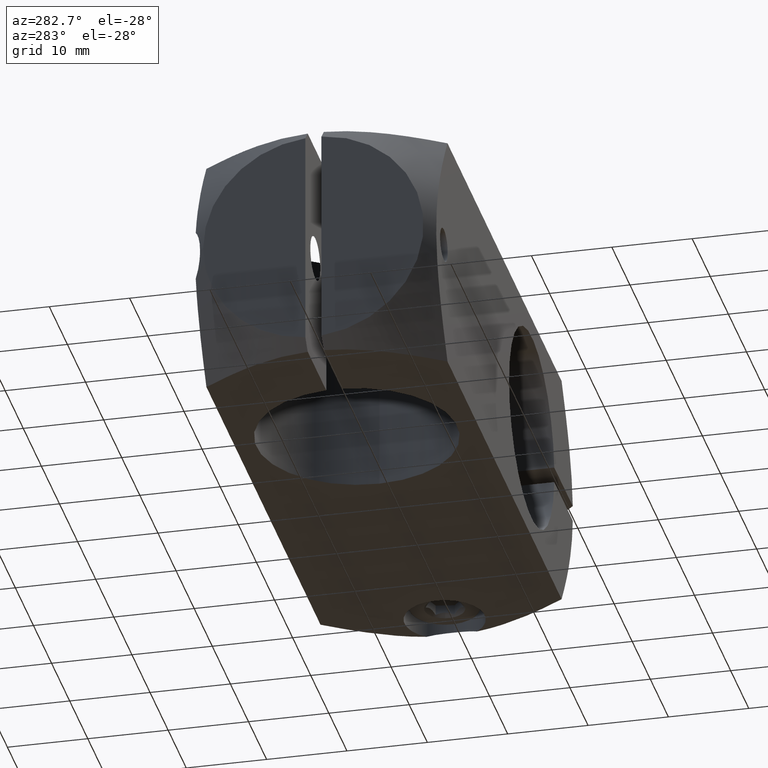
[diagram: clean part render]
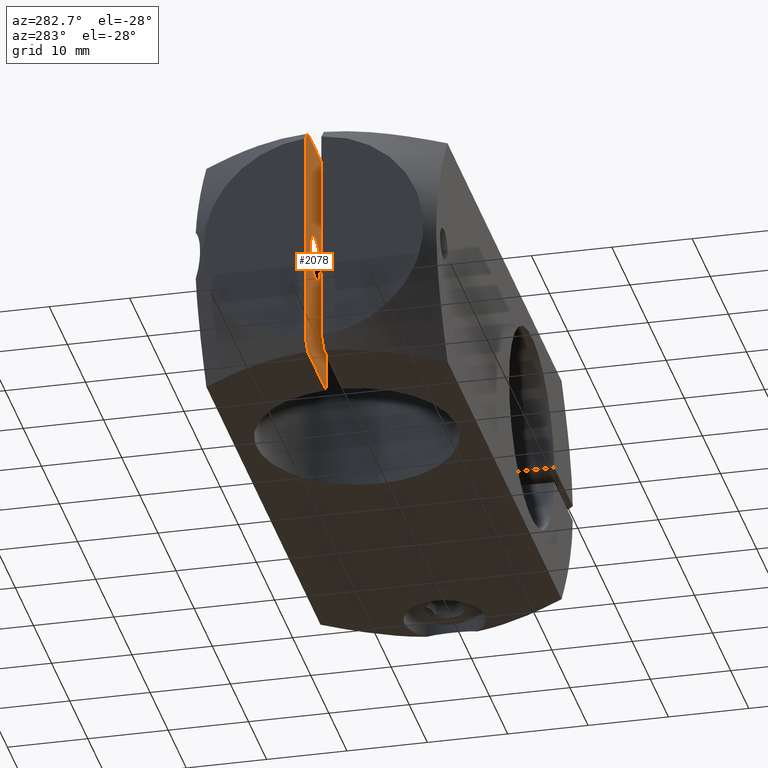
[diagram: same view with one face highlighted and labeled with its STEP entity id]
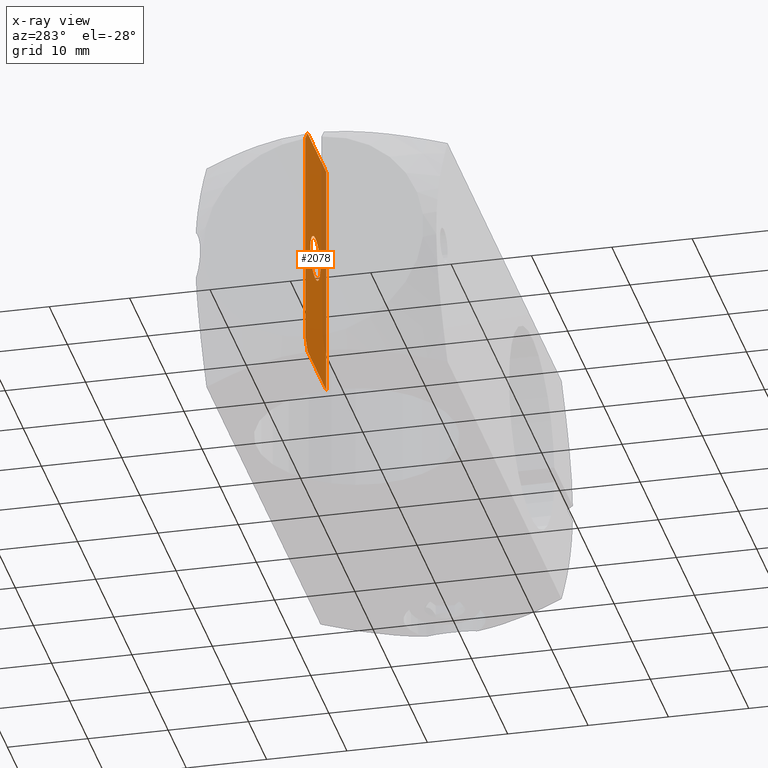
[diagram: x-ray of the same camera — body ghosted, the highlighted face saturated]
A machine part, auxiliary view. The second image highlights one B-rep face of the part: STEP entity #2078.
The next image is the same camera in x-ray: the body ghosted, the highlighted face saturated — about 19% of this face is hidden behind the body in this view.
In plain terms, the highlighted planar face has unit normal (-0, 1, 0).
Its self-contained STEP definition (entity closure, byte-faithful):
#16 = DIRECTION ( 'NONE',  ( 0.000000000000000000, 0.000000000000000000, 1.000000000000000000 ) ) ;
#37 = FACE_OUTER_BOUND ( 'NONE', #610, .T. ) ;
#43 = EDGE_CURVE ( 'NONE', #1654, #1300, #1221, .T. ) ;
#60 = EDGE_CURVE ( 'NONE', #736, #555, #1269, .T. ) ;
#88 = CARTESIAN_POINT ( 'NONE',  ( -20.60404504437318707, -7.489728769479425452, 91.84039175949929756 ) ) ;
#106 = VERTEX_POINT ( 'NONE', #1228 ) ;
#117 = LINE ( 'NONE', #291, #1576 ) ;
#126 = CARTESIAN_POINT ( 'NONE',  ( -15.10404504437317463, -7.489728769479425452, 80.91369555892572407 ) ) ;
#171 = DIRECTION ( 'NONE',  ( -0.000000000000000000, 1.000000000000000000, 0.000000000000000000 ) ) ;
#190 = CARTESIAN_POINT ( 'NONE',  ( -15.10404504437317463, -7.489728769479425452, 78.16369555892570986 ) ) ;
#194 = EDGE_CURVE ( 'NONE', #106, #678, #117, .T. ) ;
#213 = DIRECTION ( 'NONE',  ( -0.000000000000000000, 1.000000000000000000, 0.000000000000000000 ) ) ;
#262 = CARTESIAN_POINT ( 'NONE',  ( -19.28395444628326771, -7.489728769479425452, 63.16369555892571697 ) ) ;
#291 = CARTESIAN_POINT ( 'NONE',  ( -44.57811922938638105, -7.489728769479425452, 93.16369555892570986 ) ) ;
#364 = FACE_BOUND ( 'NONE', #766, .T. ) ;
#371 = CARTESIAN_POINT ( 'NONE',  ( -19.28395444628326771, -7.489728769479425452, 63.16369555892571697 ) ) ;
#514 = B_SPLINE_CURVE_WITH_KNOTS ( 'NONE', 3,
 ( #1224, #1055, #1732, #557 ),
 .UNSPECIFIED., .F., .F.,
 ( 4, 4 ),
 ( 9.888395924875875360E-07, 0.001870126274407364619 ),
 .UNSPECIFIED. ) ;
#555 = VERTEX_POINT ( 'NONE', #1052 ) ;
#557 = CARTESIAN_POINT ( 'NONE',  ( -20.60404504437318707, -7.489728769479425452, 91.84039175949929756 ) ) ;
#610 = EDGE_LOOP ( 'NONE', ( #2160, #2135, #1998, #918, #1437, #934 ) ) ;
#678 = VERTEX_POINT ( 'NONE', #1622 ) ;
#695 = CARTESIAN_POINT ( 'NONE',  ( -15.10404504437317463, -7.489728769479425452, 78.16369555892570986 ) ) ;
#709 = VERTEX_POINT ( 'NONE', #88 ) ;
#736 = VERTEX_POINT ( 'NONE', #262 ) ;
#766 = EDGE_LOOP ( 'NONE', ( #1186, #1497 ) ) ;
#806 = B_SPLINE_CURVE_WITH_KNOTS ( 'NONE', 3,
 ( #2124, #921, #2112, #371 ),
 .UNSPECIFIED., .F., .F.,
 ( 4, 4 ),
 ( 0.03956520033644155693, 0.04145065740465206372 ),
 .UNSPECIFIED. ) ;
#893 = CARTESIAN_POINT ( 'NONE',  ( -44.57811922938638105, -7.489728769479425452, 63.16269555892571930 ) ) ;
#905 = CARTESIAN_POINT ( 'NONE',  ( -9.063983667686292378, -7.489728769479425452, 63.16269555892571930 ) ) ;
#909 = DIRECTION ( 'NONE',  ( 1.000000000000000000, 0.000000000000000000, 0.000000000000000000 ) ) ;
#918 = ORIENTED_EDGE ( 'NONE', *, *, #1309, .T. ) ;
#921 = CARTESIAN_POINT ( 'NONE',  ( -20.16406659355164521, -7.489728769479425452, 64.04584647209138382 ) ) ;
#934 = ORIENTED_EDGE ( 'NONE', *, *, #1723, .T. ) ;
#979 = CARTESIAN_POINT ( 'NONE',  ( -20.60404504437318707, -7.489728769479425452, 64.48699935835212216 ) ) ;
#1052 = CARTESIAN_POINT ( 'NONE',  ( -9.063983667686292378, -7.489728769479425452, 63.16369555892571697 ) ) ;
#1055 = CARTESIAN_POINT ( 'NONE',  ( -19.72403208669276964, -7.489728769479425452, 92.72264112119725610 ) ) ;
#1060 = VECTOR ( 'NONE', #1288, 1000.000000000000000 ) ;
#1084 = PLANE ( 'NONE',  #1614 ) ;
#1161 = VERTEX_POINT ( 'NONE', #979 ) ;
#1186 = ORIENTED_EDGE ( 'NONE', *, *, #43, .T. ) ;
#1221 = CIRCLE ( 'NONE', #1361, 2.750000000000002665 ) ;
#1224 = CARTESIAN_POINT ( 'NONE',  ( -19.28395444628326771, -7.489728769479425452, 93.16369555892570986 ) ) ;
#1228 = CARTESIAN_POINT ( 'NONE',  ( -9.063983667686292378, -7.489728769479425452, 93.16369555892570986 ) ) ;
#1268 = CARTESIAN_POINT ( 'NONE',  ( -15.10404504437317463, -7.489728769479425452, 75.41369555892570986 ) ) ;
#1269 = LINE ( 'NONE', #1952, #2183 ) ;
#1288 = DIRECTION ( 'NONE',  ( 0.000000000000000000, 0.000000000000000000, -1.000000000000000000 ) ) ;
#1300 = VERTEX_POINT ( 'NONE', #1268 ) ;
#1309 = EDGE_CURVE ( 'NONE', #1161, #736, #806, .T. ) ;
#1360 = EDGE_CURVE ( 'NONE', #678, #709, #514, .T. ) ;
#1361 = AXIS2_PLACEMENT_3D ( 'NONE', #190, #213, #1917 ) ;
#1386 = VECTOR ( 'NONE', #1388, 1000.000000000000000 ) ;
#1388 = DIRECTION ( 'NONE',  ( -0.000000000000000000, -0.000000000000000000, 1.000000000000000000 ) ) ;
#1421 = LINE ( 'NONE', #905, #1386 ) ;
#1437 = ORIENTED_EDGE ( 'NONE', *, *, #60, .T. ) ;
#1445 = LINE ( 'NONE', #1462, #1060 ) ;
#1462 = CARTESIAN_POINT ( 'NONE',  ( -20.60404504437316575, -7.489728769479425452, 63.16269555892571930 ) ) ;
#1497 = ORIENTED_EDGE ( 'NONE', *, *, #2106, .T. ) ;
#1532 = CIRCLE ( 'NONE', #1813, 2.750000000000002665 ) ;
#1576 = VECTOR ( 'NONE', #1697, 1000.000000000000000 ) ;
#1614 = AXIS2_PLACEMENT_3D ( 'NONE', #893, #1737, #1931 ) ;
#1622 = CARTESIAN_POINT ( 'NONE',  ( -19.28395444628326771, -7.489728769479425452, 93.16369555892570986 ) ) ;
#1654 = VERTEX_POINT ( 'NONE', #126 ) ;
#1697 = DIRECTION ( 'NONE',  ( -1.000000000000000000, -0.000000000000000000, -0.000000000000000000 ) ) ;
#1723 = EDGE_CURVE ( 'NONE', #555, #106, #1421, .T. ) ;
#1732 = CARTESIAN_POINT ( 'NONE',  ( -20.16406686450732266, -7.489728769479425452, 92.28154437408112187 ) ) ;
#1737 = DIRECTION ( 'NONE',  ( -0.000000000000000000, 1.000000000000000000, 0.000000000000000000 ) ) ;
#1813 = AXIS2_PLACEMENT_3D ( 'NONE', #695, #171, #16 ) ;
#1835 = EDGE_CURVE ( 'NONE', #709, #1161, #1445, .T. ) ;
#1917 = DIRECTION ( 'NONE',  ( 0.000000000000000000, 0.000000000000000000, 1.000000000000000000 ) ) ;
#1931 = DIRECTION ( 'NONE',  ( 0.000000000000000000, -0.000000000000000000, 1.000000000000000000 ) ) ;
#1952 = CARTESIAN_POINT ( 'NONE',  ( -44.57811922938638105, -7.489728769479425452, 63.16369555892571697 ) ) ;
#1998 = ORIENTED_EDGE ( 'NONE', *, *, #1835, .T. ) ;
#2078 = ADVANCED_FACE ( 'NONE', ( #364, #37 ), #1084, .F. ) ;
#2106 = EDGE_CURVE ( 'NONE', #1300, #1654, #1532, .T. ) ;
#2112 = CARTESIAN_POINT ( 'NONE',  ( -19.72403183952945582, -7.489728769479425452, 63.60474974894226818 ) ) ;
#2124 = CARTESIAN_POINT ( 'NONE',  ( -20.60404504437318707, -7.489728769479425452, 64.48699935835212216 ) ) ;
#2135 = ORIENTED_EDGE ( 'NONE', *, *, #1360, .T. ) ;
#2160 = ORIENTED_EDGE ( 'NONE', *, *, #194, .T. ) ;
#2183 = VECTOR ( 'NONE', #909, 1000.000000000000000 ) ;